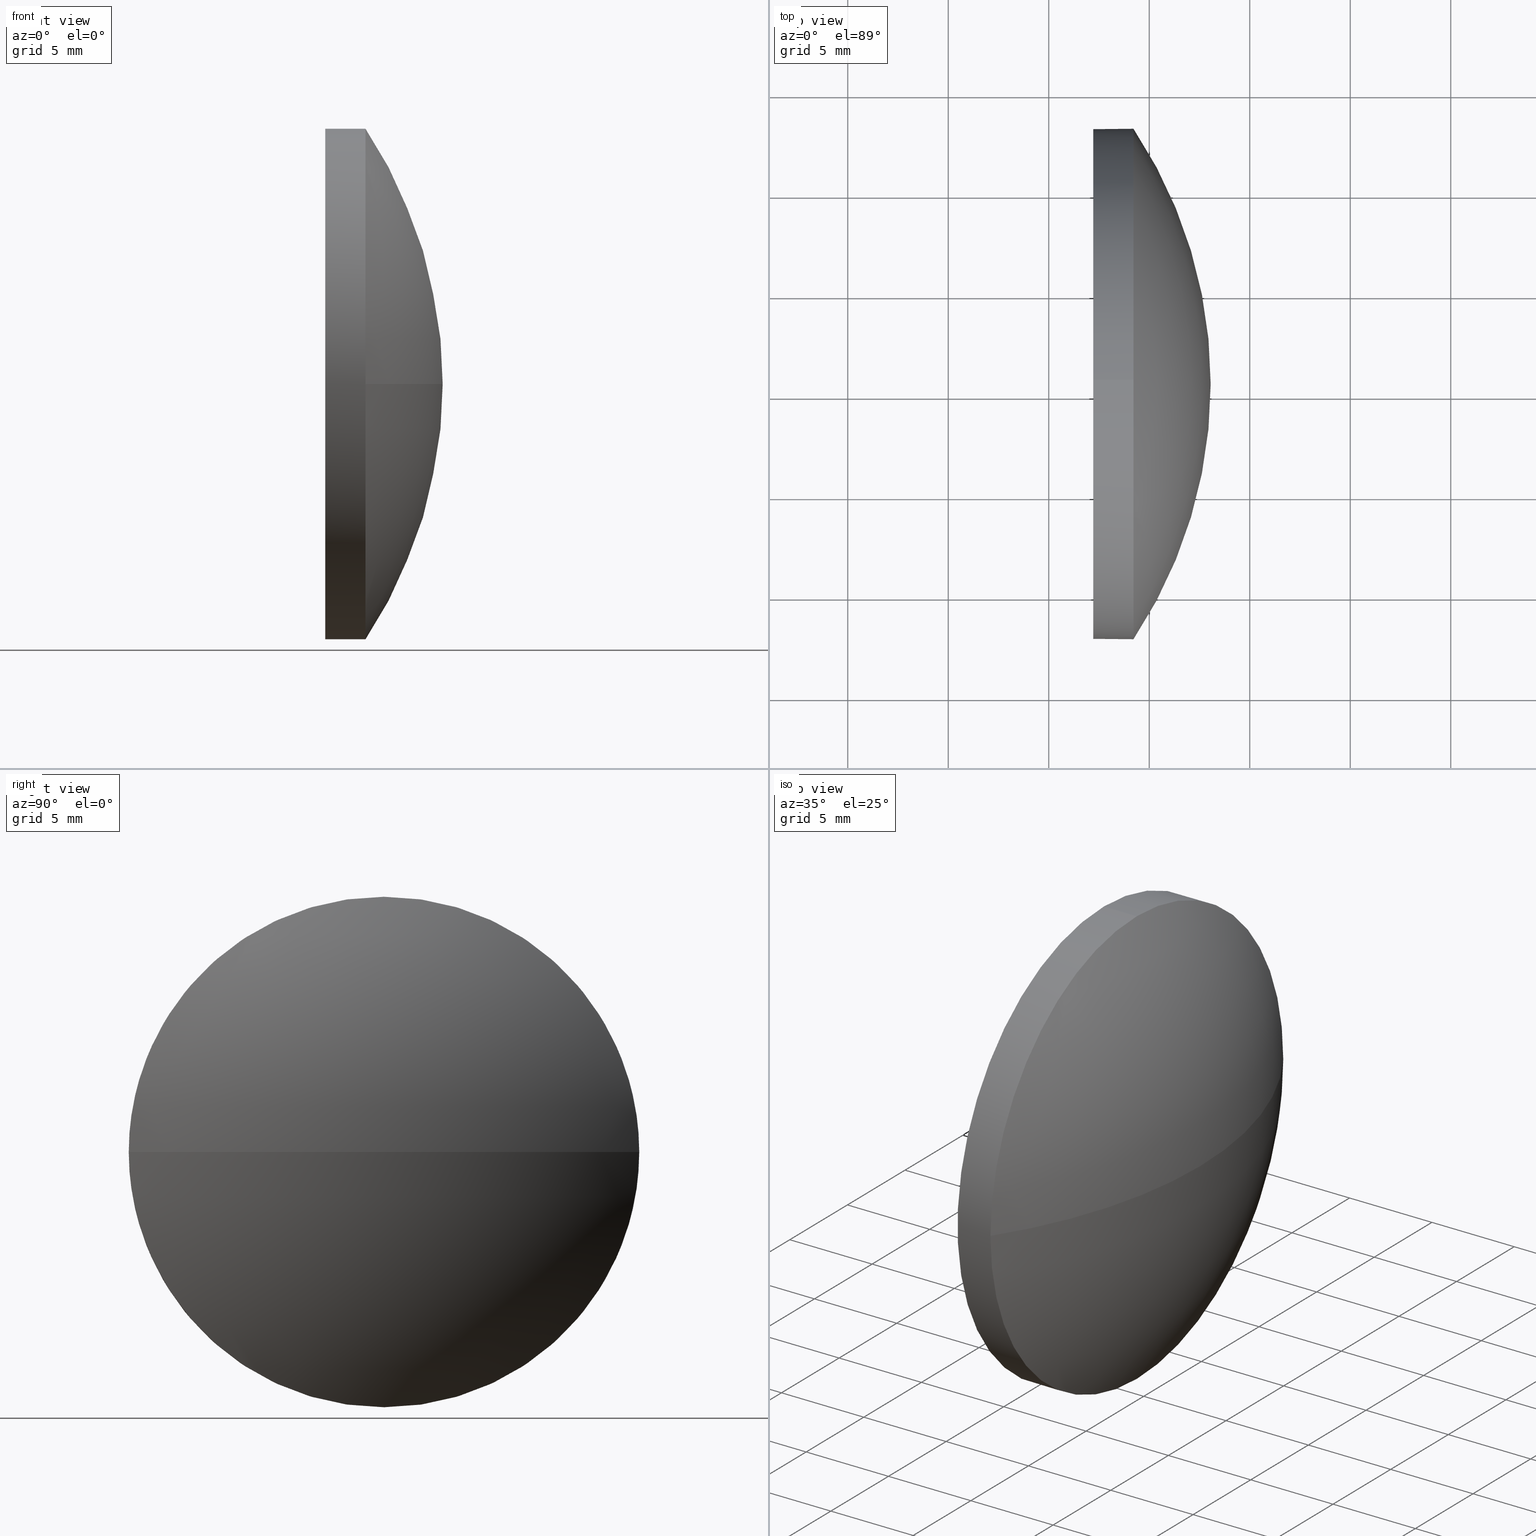
[diagram: canonical four-view strip — front | top / right | iso, engineering-drawing reading convention]
A machine part, canonical four-view strip (front | top / right | iso — engineering-drawing reading convention). The complete STEP part file that produces these views, byte-faithful:
ISO-10303-21;
HEADER;
FILE_DESCRIPTION (( 'STEP AP214' ),
    '1' );
FILE_NAME ('100374.STEP',
    '2019-06-04T06:43:06',
    ( '' ),
    ( '' ),
    'SwSTEP 2.0',
    'SolidWorks 2016',
    '' );
FILE_SCHEMA (( 'AUTOMOTIVE_DESIGN' ));
ENDSEC;

DATA;
#1 = CIRCLE ( 'NONE', #15, 12.70000000000001700 ) ;
#2 = LINE ( 'NONE', #144, #158 ) ;
#3 = ADVANCED_FACE ( 'NONE', ( #30 ), #106, .T. ) ;
#4 = ORIENTED_EDGE ( 'NONE', *, *, #59, .T. ) ;
#5 = DIRECTION ( 'NONE',  ( 0.0000000000000000000, 0.0000000000000000000, 1.000000000000000000 ) ) ;
#6 = DIRECTION ( 'NONE',  ( -1.000000000000000000, -0.0000000000000000000, -0.0000000000000000000 ) ) ;
#7 = PRODUCT_CONTEXT ( 'NONE', #169, 'mechanical' ) ;
#8 =( NAMED_UNIT ( * ) PLANE_ANGLE_UNIT ( ) SI_UNIT ( $, .RADIAN. ) );
#9 = COLOUR_RGB ( '',1.000000000000000000, 1.000000000000000000, 1.000000000000000000 ) ;
#10 = CARTESIAN_POINT ( 'NONE',  ( 0.0000000000000000000, 0.0000000000000000000, 0.0000000000000000000 ) ) ;
#11 = CARTESIAN_POINT ( 'NONE',  ( 446.5121654917247700, 125.5256010425788700, -12.70000000000001700 ) ) ;
#12 = SURFACE_STYLE_FILL_AREA ( #186 ) ;
#13 = STYLED_ITEM ( 'NONE', ( #170 ), #23 ) ;
#14 = CARTESIAN_POINT ( 'NONE',  ( 452.2168390391796000, 125.5256010425788700, -12.70000000000001700 ) ) ;
#15 = AXIS2_PLACEMENT_3D ( 'NONE', #163, #28, #183 ) ;
#16 = APPLICATION_PROTOCOL_DEFINITION ( 'draft international standard', 'automotive_design', 1998, #119 ) ;
#17 = DIRECTION ( 'NONE',  ( 0.0000000000000000000, 0.0000000000000000000, 1.000000000000000000 ) ) ;
#18 = DIRECTION ( 'NONE',  ( 0.0000000000000000000, 0.0000000000000000000, -1.000000000000000000 ) ) ;
#19 = AXIS2_PLACEMENT_3D ( 'NONE', #148, #121, #17 ) ;
#20 = CARTESIAN_POINT ( 'NONE',  ( 452.2168390391796000, 125.5256010425788700, 0.0000000000000000000 ) ) ;
#21 = COLOUR_RGB ( '',1.000000000000000000, 1.000000000000000000, 1.000000000000000000 ) ;
#22 = ORIENTED_EDGE ( 'NONE', *, *, #51, .F. ) ;
#23 = ADVANCED_BREP_SHAPE_REPRESENTATION ( '100374', ( #157, #92 ), #127 ) ;
#24 = FACE_OUTER_BOUND ( 'NONE', #98, .T. ) ;
#25 = DIRECTION ( 'NONE',  ( -1.000000000000000000, -0.0000000000000000000, -0.0000000000000000000 ) ) ;
#26 = CYLINDRICAL_SURFACE ( 'NONE', #74, 12.70000000000001700 ) ;
#27 = ORIENTED_EDGE ( 'NONE', *, *, #82, .F. ) ;
#28 = DIRECTION ( 'NONE',  ( -1.000000000000000000, -0.0000000000000000000, -0.0000000000000000000 ) ) ;
#29 = SURFACE_STYLE_USAGE ( .BOTH. , #168 ) ;
#30 = FACE_OUTER_BOUND ( 'NONE', #43, .T. ) ;
#31 = ORIENTED_EDGE ( 'NONE', *, *, #93, .T. ) ;
#32 = FACE_OUTER_BOUND ( 'NONE', #40, .T. ) ;
#33 = CIRCLE ( 'NONE', #19, 12.70000000000001700 ) ;
#34 = CARTESIAN_POINT ( 'NONE',  ( 452.2168390391796000, 125.5256010425788700, 0.0000000000000000000 ) ) ;
#35 = LINE ( 'NONE', #11, #73 ) ;
#36 =( NAMED_UNIT ( * ) PLANE_ANGLE_UNIT ( ) SI_UNIT ( $, .RADIAN. ) );
#37 =( LENGTH_UNIT ( ) NAMED_UNIT ( * ) SI_UNIT ( .MILLI., .METRE. ) );
#38 = ORIENTED_EDGE ( 'NONE', *, *, #115, .T. ) ;
#39 = CARTESIAN_POINT ( 'NONE',  ( 452.2168390391796000, 125.5256010425788700, 12.70000000000001700 ) ) ;
#40 = EDGE_LOOP ( 'NONE', ( #71, #48, #133, #184, #27 ) ) ;
#41 = ORIENTED_EDGE ( 'NONE', *, *, #72, .F. ) ;
#42 = ADVANCED_FACE ( 'NONE', ( #32 ), #143, .T. ) ;
#43 = EDGE_LOOP ( 'NONE', ( #167, #182, #41, #132 ) ) ;
#44 = CARTESIAN_POINT ( 'NONE',  ( 454.2168390391796000, 125.5256010425788700, 0.0000000000000000000 ) ) ;
#45 = AXIS2_PLACEMENT_3D ( 'NONE', #162, #179, #77 ) ;
#46 = DIRECTION ( 'NONE',  ( -0.0000000000000000000, 0.0000000000000000000, -1.000000000000000000 ) ) ;
#47 = CARTESIAN_POINT ( 'NONE',  ( 435.1355369558463100, 125.5256010425788700, 0.0000000000000000000 ) ) ;
#48 = ORIENTED_EDGE ( 'NONE', *, *, #72, .T. ) ;
#49 = VERTEX_POINT ( 'NONE', #160 ) ;
#50 = FILL_AREA_STYLE ('',( #136 ) ) ;
#51 = EDGE_CURVE ( 'NONE', #124, #123, #2, .T. ) ;
#52 = UNCERTAINTY_MEASURE_WITH_UNIT (LENGTH_MEASURE( 1.000000000000000100E-005 ), #137, 'distance_accuracy_value', 'NONE');
#53 = SURFACE_SIDE_STYLE ('',( #12 ) ) ;
#54 =( NAMED_UNIT ( * ) PLANE_ANGLE_UNIT ( ) SI_UNIT ( $, .RADIAN. ) );
#55 = CIRCLE ( 'NONE', #166, 12.70000000000001700 ) ;
#56 = AXIS2_PLACEMENT_3D ( 'NONE', #65, #110, #159 ) ;
#57 = STYLED_ITEM ( 'NONE', ( #155 ), #157 ) ;
#58 = EDGE_CURVE ( 'NONE', #62, #94, #64, .T. ) ;
#59 = EDGE_CURVE ( 'NONE', #62, #49, #141, .T. ) ;
#60 = DIRECTION ( 'NONE',  ( 0.0000000000000000000, 0.0000000000000000000, 1.000000000000000000 ) ) ;
#61 = VERTEX_POINT ( 'NONE', #131 ) ;
#62 = VERTEX_POINT ( 'NONE', #180 ) ;
#63 = DIRECTION ( 'NONE',  ( 0.0000000000000000000, 1.000000000000000000, 0.0000000000000000000 ) ) ;
#64 = CIRCLE ( 'NONE', #56, 22.92130208333331600 ) ;
#65 = CARTESIAN_POINT ( 'NONE',  ( 435.1355369558463100, 125.5256010425788700, 0.0000000000000000000 ) ) ;
#66 = APPLICATION_PROTOCOL_DEFINITION ( 'draft international standard', 'automotive_design', 1998, #169 ) ;
#67 = AXIS2_PLACEMENT_3D ( 'NONE', #146, #116, #149 ) ;
#68 = FILL_AREA_STYLE_COLOUR ( '', #9 ) ;
#69 = ORIENTED_EDGE ( 'NONE', *, *, #93, .F. ) ;
#70 = PRESENTATION_LAYER_ASSIGNMENT (  '', '', ( #57 ) ) ;
#71 = ORIENTED_EDGE ( 'NONE', *, *, #107, .F. ) ;
#72 = EDGE_CURVE ( 'NONE', #61, #94, #81, .T. ) ;
#73 = VECTOR ( 'NONE', #83, 1000.000000000000000 ) ;
#74 = AXIS2_PLACEMENT_3D ( 'NONE', #113, #96, #114 ) ;
#75 = ADVANCED_FACE ( 'NONE', ( #24 ), #145, .T. ) ;
#76 = DIRECTION ( 'NONE',  ( -1.000000000000000000, -0.0000000000000000000, -0.0000000000000000000 ) ) ;
#77 = DIRECTION ( 'NONE',  ( 0.0000000000000000000, 1.000000000000000000, 0.0000000000000000000 ) ) ;
#78 = PRESENTATION_LAYER_ASSIGNMENT (  '', '', ( #13 ) ) ;
#79 = ADVANCED_FACE ( 'NONE', ( #118 ), #26, .T. ) ;
#80 = DIRECTION ( 'NONE',  ( -1.000000000000000000, -0.0000000000000000000, -0.0000000000000000000 ) ) ;
#81 = CIRCLE ( 'NONE', #138, 12.70000000000001700 ) ;
#82 = EDGE_CURVE ( 'NONE', #103, #123, #91, .T. ) ;
#83 = DIRECTION ( 'NONE',  ( -1.000000000000000000, -0.0000000000000000000, -0.0000000000000000000 ) ) ;
#84 = PRODUCT_DEFINITION_CONTEXT ( 'detailed design', #119, 'design' ) ;
#85 = DIRECTION ( 'NONE',  ( 1.000000000000000000, 0.0000000000000000000, 0.0000000000000000000 ) ) ;
#86 = AXIS2_PLACEMENT_3D ( 'NONE', #20, #87, #18 ) ;
#87 = DIRECTION ( 'NONE',  ( 1.000000000000000000, 0.0000000000000000000, 0.0000000000000000000 ) ) ;
#88 = EDGE_LOOP ( 'NONE', ( #38, #139, #69, #22, #112 ) ) ;
#89 = AXIS2_PLACEMENT_3D ( 'NONE', #34, #6, #97 ) ;
#90 = CLOSED_SHELL ( 'NONE', ( #79, #3, #75, #42, #177 ) ) ;
#91 = CIRCLE ( 'NONE', #89, 12.70000000000001700 ) ;
#92 = AXIS2_PLACEMENT_3D ( 'NONE', #10, #100, #85 ) ;
#93 = EDGE_CURVE ( 'NONE', #123, #103, #1, .T. ) ;
#94 = VERTEX_POINT ( 'NONE', #111 ) ;
#95 =( GEOMETRIC_REPRESENTATION_CONTEXT ( 3 ) GLOBAL_UNCERTAINTY_ASSIGNED_CONTEXT ( ( #174 ) ) GLOBAL_UNIT_ASSIGNED_CONTEXT ( ( #135, #8, #152 ) ) REPRESENTATION_CONTEXT ( 'NONE', 'WORKASPACE' ) );
#96 = DIRECTION ( 'NONE',  ( -1.000000000000000000, -0.0000000000000000000, -0.0000000000000000000 ) ) ;
#97 = DIRECTION ( 'NONE',  ( 0.0000000000000000000, 0.0000000000000000000, 1.000000000000000000 ) ) ;
#98 = EDGE_LOOP ( 'NONE', ( #175, #4, #176, #109 ) ) ;
#99 = DIRECTION ( 'NONE',  ( 0.0000000000000000000, 0.0000000000000000000, 1.000000000000000000 ) ) ;
#100 = DIRECTION ( 'NONE',  ( 0.0000000000000000000, 0.0000000000000000000, 1.000000000000000000 ) ) ;
#101 = SURFACE_STYLE_USAGE ( .BOTH. , #53 ) ;
#102 = PRODUCT_DEFINITION_FORMATION_WITH_SPECIFIED_SOURCE ( '�κ�', '', #140, .NOT_KNOWN. ) ;
#103 = VERTEX_POINT ( 'NONE', #14 ) ;
#104 = EDGE_CURVE ( 'NONE', #124, #49, #33, .T. ) ;
#105 = AXIS2_PLACEMENT_3D ( 'NONE', #130, #25, #60 ) ;
#106 = SPHERICAL_SURFACE ( 'NONE', #120, 22.92130208333331600 ) ;
#107 = EDGE_CURVE ( 'NONE', #61, #103, #35, .T. ) ;
#108 = PRODUCT_DEFINITION_SHAPE ( 'NONE', 'NONE',  #172 ) ;
#109 = ORIENTED_EDGE ( 'NONE', *, *, #126, .F. ) ;
#110 = DIRECTION ( 'NONE',  ( 0.0000000000000000000, 1.224646799147353200E-016, -1.000000000000000000 ) ) ;
#111 = CARTESIAN_POINT ( 'NONE',  ( 454.2168390391796000, 112.8256010425788500, -1.555301434917140200E-015 ) ) ;
#112 = ORIENTED_EDGE ( 'NONE', *, *, #104, .T. ) ;
#113 = CARTESIAN_POINT ( 'NONE',  ( 446.5121654917247700, 125.5256010425788700, 0.0000000000000000000 ) ) ;
#114 = DIRECTION ( 'NONE',  ( 0.0000000000000000000, 0.0000000000000000000, 1.000000000000000000 ) ) ;
#115 = EDGE_CURVE ( 'NONE', #49, #61, #161, .T. ) ;
#116 = DIRECTION ( 'NONE',  ( -1.000000000000000000, -0.0000000000000000000, -0.0000000000000000000 ) ) ;
#117 = CARTESIAN_POINT ( 'NONE',  ( 454.2168390391796000, 125.5256010425788700, 0.0000000000000000000 ) ) ;
#118 = FACE_OUTER_BOUND ( 'NONE', #88, .T. ) ;
#119 = APPLICATION_CONTEXT ( 'automotive_design' ) ;
#120 = AXIS2_PLACEMENT_3D ( 'NONE', #47, #46, #63 ) ;
#121 = DIRECTION ( 'NONE',  ( -1.000000000000000000, -0.0000000000000000000, -0.0000000000000000000 ) ) ;
#122 = DIRECTION ( 'NONE',  ( -1.000000000000000000, -0.0000000000000000000, -0.0000000000000000000 ) ) ;
#123 = VERTEX_POINT ( 'NONE', #39 ) ;
#124 = VERTEX_POINT ( 'NONE', #134 ) ;
#125 = AXIS2_PLACEMENT_3D ( 'NONE', #129, #128, #181 ) ;
#126 = EDGE_CURVE ( 'NONE', #94, #124, #55, .T. ) ;
#127 =( GEOMETRIC_REPRESENTATION_CONTEXT ( 3 ) GLOBAL_UNCERTAINTY_ASSIGNED_CONTEXT ( ( #52 ) ) GLOBAL_UNIT_ASSIGNED_CONTEXT ( ( #137, #36, #185 ) ) REPRESENTATION_CONTEXT ( 'NONE', 'WORKASPACE' ) );
#128 = DIRECTION ( 'NONE',  ( -0.0000000000000000000, 0.0000000000000000000, 1.000000000000000000 ) ) ;
#129 = CARTESIAN_POINT ( 'NONE',  ( 435.1355369558463100, 125.5256010425788700, 0.0000000000000000000 ) ) ;
#130 = CARTESIAN_POINT ( 'NONE',  ( 446.5121654917247700, 125.5256010425788700, 0.0000000000000000000 ) ) ;
#131 = CARTESIAN_POINT ( 'NONE',  ( 454.2168390391796000, 125.5256010425788700, -12.70000000000001700 ) ) ;
#132 = ORIENTED_EDGE ( 'NONE', *, *, #115, .F. ) ;
#133 = ORIENTED_EDGE ( 'NONE', *, *, #126, .T. ) ;
#134 = CARTESIAN_POINT ( 'NONE',  ( 454.2168390391796000, 125.5256010425788700, 12.70000000000001700 ) ) ;
#135 =( LENGTH_UNIT ( ) NAMED_UNIT ( * ) SI_UNIT ( .MILLI., .METRE. ) );
#136 = FILL_AREA_STYLE_COLOUR ( '', #21 ) ;
#137 =( LENGTH_UNIT ( ) NAMED_UNIT ( * ) SI_UNIT ( .MILLI., .METRE. ) );
#138 = AXIS2_PLACEMENT_3D ( 'NONE', #44, #80, #5 ) ;
#139 = ORIENTED_EDGE ( 'NONE', *, *, #107, .T. ) ;
#140 = PRODUCT ( '100374', '100374', '', ( #7 ) ) ;
#141 = CIRCLE ( 'NONE', #125, 22.92130208333331600 ) ;
#142 = UNCERTAINTY_MEASURE_WITH_UNIT (LENGTH_MEASURE( 1.000000000000000100E-005 ), #37, 'distance_accuracy_value', 'NONE');
#143 = CYLINDRICAL_SURFACE ( 'NONE', #105, 12.70000000000001700 ) ;
#144 = CARTESIAN_POINT ( 'NONE',  ( 446.5121654917247700, 125.5256010425788700, 12.70000000000001700 ) ) ;
#145 = SPHERICAL_SURFACE ( 'NONE', #45, 22.92130208333331600 ) ;
#146 = CARTESIAN_POINT ( 'NONE',  ( 454.2168390391796000, 125.5256010425788700, 0.0000000000000000000 ) ) ;
#147 = PLANE ( 'NONE',  #86 ) ;
#148 = CARTESIAN_POINT ( 'NONE',  ( 454.2168390391796000, 125.5256010425788700, 0.0000000000000000000 ) ) ;
#149 = DIRECTION ( 'NONE',  ( 0.0000000000000000000, 0.0000000000000000000, 1.000000000000000000 ) ) ;
#150 = FACE_OUTER_BOUND ( 'NONE', #153, .T. ) ;
#151 =( GEOMETRIC_REPRESENTATION_CONTEXT ( 3 ) GLOBAL_UNCERTAINTY_ASSIGNED_CONTEXT ( ( #142 ) ) GLOBAL_UNIT_ASSIGNED_CONTEXT ( ( #37, #54, #164 ) ) REPRESENTATION_CONTEXT ( 'NONE', 'WORKASPACE' ) );
#152 =( NAMED_UNIT ( * ) SI_UNIT ( $, .STERADIAN. ) SOLID_ANGLE_UNIT ( ) );
#153 = EDGE_LOOP ( 'NONE', ( #31, #154 ) ) ;
#154 = ORIENTED_EDGE ( 'NONE', *, *, #82, .T. ) ;
#155 = PRESENTATION_STYLE_ASSIGNMENT (( #101 ) ) ;
#156 = PRODUCT_RELATED_PRODUCT_CATEGORY ( 'part', '', ( #140 ) ) ;
#157 = MANIFOLD_SOLID_BREP ( '��ת1', #90 ) ;
#158 = VECTOR ( 'NONE', #76, 1000.000000000000000 ) ;
#159 = DIRECTION ( 'NONE',  ( 0.0000000000000000000, 1.000000000000000000, 1.224646799147353200E-016 ) ) ;
#160 = CARTESIAN_POINT ( 'NONE',  ( 454.2168390391796000, 138.2256010425788900, 0.0000000000000000000 ) ) ;
#161 = CIRCLE ( 'NONE', #67, 12.70000000000001700 ) ;
#162 = CARTESIAN_POINT ( 'NONE',  ( 435.1355369558463100, 125.5256010425788700, 0.0000000000000000000 ) ) ;
#163 = CARTESIAN_POINT ( 'NONE',  ( 452.2168390391796000, 125.5256010425788700, 0.0000000000000000000 ) ) ;
#164 =( NAMED_UNIT ( * ) SI_UNIT ( $, .STERADIAN. ) SOLID_ANGLE_UNIT ( ) );
#165 = SHAPE_DEFINITION_REPRESENTATION ( #108, #23 ) ;
#166 = AXIS2_PLACEMENT_3D ( 'NONE', #117, #122, #99 ) ;
#167 = ORIENTED_EDGE ( 'NONE', *, *, #59, .F. ) ;
#168 = SURFACE_SIDE_STYLE ('',( #173 ) ) ;
#169 = APPLICATION_CONTEXT ( 'automotive_design' ) ;
#170 = PRESENTATION_STYLE_ASSIGNMENT (( #29 ) ) ;
#171 = MECHANICAL_DESIGN_GEOMETRIC_PRESENTATION_REPRESENTATION (  '', ( #13 ), #95 ) ;
#172 = PRODUCT_DEFINITION ( 'δ֪', '', #102, #84 ) ;
#173 = SURFACE_STYLE_FILL_AREA ( #50 ) ;
#174 = UNCERTAINTY_MEASURE_WITH_UNIT (LENGTH_MEASURE( 1.000000000000000100E-005 ), #135, 'distance_accuracy_value', 'NONE');
#175 = ORIENTED_EDGE ( 'NONE', *, *, #58, .F. ) ;
#176 = ORIENTED_EDGE ( 'NONE', *, *, #104, .F. ) ;
#177 = ADVANCED_FACE ( 'NONE', ( #150 ), #147, .F. ) ;
#178 = MECHANICAL_DESIGN_GEOMETRIC_PRESENTATION_REPRESENTATION (  '', ( #57 ), #151 ) ;
#179 = DIRECTION ( 'NONE',  ( -0.0000000000000000000, 0.0000000000000000000, -1.000000000000000000 ) ) ;
#180 = CARTESIAN_POINT ( 'NONE',  ( 458.0568390391795800, 125.5256010425788700, 0.0000000000000000000 ) ) ;
#181 = DIRECTION ( 'NONE',  ( 1.000000000000000000, 0.0000000000000000000, 0.0000000000000000000 ) ) ;
#182 = ORIENTED_EDGE ( 'NONE', *, *, #58, .T. ) ;
#183 = DIRECTION ( 'NONE',  ( 0.0000000000000000000, 0.0000000000000000000, 1.000000000000000000 ) ) ;
#184 = ORIENTED_EDGE ( 'NONE', *, *, #51, .T. ) ;
#185 =( NAMED_UNIT ( * ) SI_UNIT ( $, .STERADIAN. ) SOLID_ANGLE_UNIT ( ) );
#186 = FILL_AREA_STYLE ('',( #68 ) ) ;
ENDSEC;
END-ISO-10303-21;
